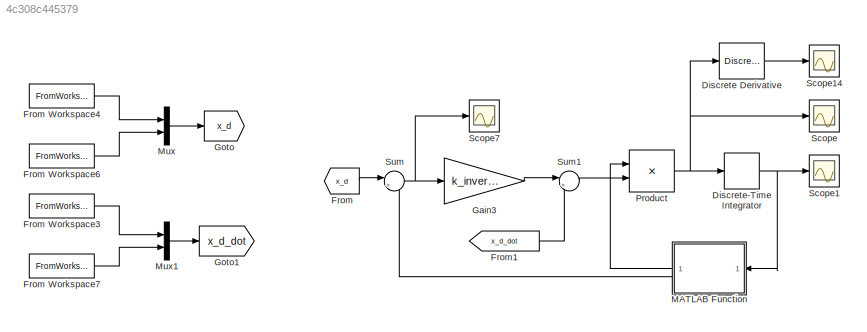
MODEL slx_4c308c445379
KIND model
CONFIG AbsTol = auto
CONFIG EnableMultiTasking = off
CONFIG FixedStep = auto
CONFIG MaxStep = auto
CONFIG MinStep = auto
CONFIG RelTol = 1e-3
CONFIG SampleTimeConstraint = Unconstrained
CONFIG SolverName = VariableStepAuto
CONFIG StartTime = 0.0
CONFIG StopTime = 40
BLOCK [Reference] Discrete Derivative  REF=simulink/Discrete/Discrete Derivative
  SourceBlock = simulink/Discrete/Discrete Derivative
  SourceType = Discrete Derivative
BLOCK [DiscreteIntegrator] Discrete-Time Integrator
  ICPrevOutput = DiscIntNeverNeededParam
  ICPrevScaledInput = DiscIntNeverNeededParam
  InitialCondition = [theta1_0 theta2_0 -0.25 0]'
  InitialConditionSetting = Auto
  SampleTime = -1
BLOCK [From] From
  GotoTag = x_d
BLOCK [FromWorkspace] From Workspace3
  SampleTime = T
  VariableName = p_d_dot
BLOCK [FromWorkspace] From Workspace4
  SampleTime = T
  VariableName = p_d
BLOCK [FromWorkspace] From Workspace6
  SampleTime = T
  VariableName = phi_d
BLOCK [FromWorkspace] From Workspace7
  SampleTime = T
  VariableName = phi_d_dot
BLOCK [From] From1
  GotoTag = x_d_dot
BLOCK [Gain] Gain3
  Gain = k_inversa
BLOCK [Goto] Goto
  GotoTag = x_d
BLOCK [Goto] Goto1
  GotoTag = x_d_dot
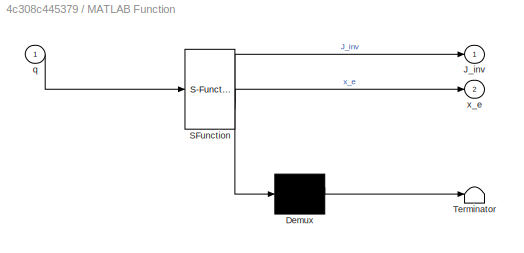
BLOCK [SubSystem] MATLAB Function
  ErrorFcn = Stateflow.Translate.translate
  LibrarySourceBlock = simulink/User-Defined\nFunctions/MATLAB Function
  NameLocation = top
  PermitHierarchicalResolution = ExplicitOnly
  SFBlockType = MATLAB Function
  TreatAsAtomicUnit = on
BLOCK [Demux] MATLAB Function/ Demux 
  Outputs = 1
BLOCK [S-Function] MATLAB Function/ SFunction 
  EnableBusSupport = on
  FunctionName = sf_sfun
  PortCounts = [1 3]
  SFcnIsStateOwnerBlock = off
  SFunctionDeploymentMode = off
  Tag = Stateflow S-Function 2
BLOCK [Terminator] MATLAB Function/ Terminator 
BLOCK [Outport] MATLAB Function/J_inv
BLOCK [Inport] MATLAB Function/q
BLOCK [Outport] MATLAB Function/x_e
  Port = 2
BLOCK [Mux] Mux
  DisplayOption = bar
  Inputs = 2
BLOCK [Mux] Mux1
  DisplayOption = bar
  Inputs = 2
BLOCK [Product] Product
  Multiplication = Matrix(*)
BLOCK [Scope] Scope
  Floating = off
  NumInputPorts = 1
  ScopeSpecificationString = Simulink.scopes.TimeScopeBlockCfg('CurrentConfiguration', extmgr.ConfigurationSet(extmgr.Configuration('Core','General UI',true),extmgr.Configuration('Core','Source UI',true),extmgr.Configuration('Sources','WiredSimulink',true),extmgr.Configuration('Visuals','Time Domain',true,'SerializedDisplays',{struct('MinYLimReal','-0.81605','MaxYLimReal','1.45384','YLabelReal','','MinYLimMag','0.00000','MaxY...<+1407ch>
BLOCK [Scope] Scope1
  Floating = off
  NumInputPorts = 1
  ScopeSpecificationString = Simulink.scopes.TimeScopeBlockCfg('CurrentConfiguration', extmgr.ConfigurationSet(extmgr.Configuration('Core','General UI',true),extmgr.Configuration('Core','Source UI',true),extmgr.Configuration('Sources','WiredSimulink',true,'DataLoggingVariableName','ScopeData1'),extmgr.Configuration('Visuals','Time Domain',true,'SerializedDisplays',{struct('MinYLimReal','-2.18153','MaxYLimReal','8.166','YLabel...<+1508ch>
BLOCK [Scope] Scope14
  Floating = off
  NumInputPorts = 1
  ScopeSpecificationString = Simulink.scopes.TimeScopeBlockCfg('CurrentConfiguration', extmgr.ConfigurationSet(extmgr.Configuration('Core','General UI',true),extmgr.Configuration('Core','Source UI',true),extmgr.Configuration('Sources','WiredSimulink',true,'DataLoggingVariableName','ScopeData14'),extmgr.Configuration('Visuals','Time Domain',true,'SerializedDisplays',{struct('MinYLimReal','-1.34073','MaxYLimReal','1.80096','YLa...<+1497ch>
BLOCK [Scope] Scope7
  Floating = off
  NumInputPorts = 1
  ScopeSpecificationString = Simulink.scopes.TimeScopeBlockCfg('CurrentConfiguration', extmgr.ConfigurationSet(extmgr.Configuration('Core','General UI',true),extmgr.Configuration('Core','Source UI',true),extmgr.Configuration('Sources','WiredSimulink',true,'DataLoggingVariableName','ScopeData7'),extmgr.Configuration('Visuals','Time Domain',true,'SerializedDisplays',{struct('MinYLimReal','-0.000017','MaxYLimReal','0.000018','YL...<+1440ch>
BLOCK [Sum] Sum
  Inputs = |+-
BLOCK [Sum] Sum1
  Inputs = |++
LINE Discrete Derivative:1 -> Scope14:1
NET Discrete-Time Integrator:1 -> MATLAB Function:1, Scope1:1
LINE From Workspace3:1 -> Mux1:1
LINE From Workspace4:1 -> Mux:1
LINE From Workspace6:1 -> Mux:2
LINE From Workspace7:1 -> Mux1:2
LINE From1:1 -> Sum1:2
LINE From:1 -> Sum:1
LINE Gain3:1 -> Sum1:1
LINE MATLAB Function:1 -> Product:1
LINE MATLAB Function:2 -> Sum:2
LINE Mux1:1 -> Goto1:1
LINE Mux:1 -> Goto:1
NET Product:1 -> Discrete Derivative:1, Discrete-Time Integrator:1, Scope:1
LINE Sum1:1 -> Product:2
NET Sum:1 -> Gain3:1, Scope7:1
note: NET lines group one-source signal fan-out (src -> all destinations, sorted); 1:1 wires keep LINE
CHART MATLAB Function states=1 transitions=1
  STATE_LABEL 'eML_blk_kernel()'
  STATE_LABEL 'SCRIPT:\nfunction [J_inv,x_e] = kin(q)\n    \n    q1 = q(1); q2 = q(2); q3 = q(3); q4 = q(4);\n\n    J = [- sin(q1)/2 - (cos(q1)*sin(q2))/2 - (cos(q2)*sin(q1))/2, - (cos(q1)*sin(q2))/2 - (cos(q2)*sin(q1))/2, 0, 0;\n           cos(q1)/2 + (cos(q1)*cos(q2))/2 - (sin(q1)*sin(q2))/2,   (cos(q1)*cos(q2))/2 - (sin(q1)*sin(q2))/2, 0, 0;\n                                                               0,         ...<+432ch>'
CHART  states=0 transitions=0
